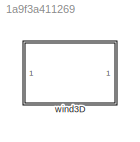
MODEL slx_1a9f3a411269
KIND library
CONFIG AbsTol = auto
CONFIG EnableMultiTasking = off
CONFIG FixedStep = auto
CONFIG MaxStep = auto
CONFIG MinStep = auto
CONFIG RelTol = 1e-3
CONFIG SampleTimeConstraint = Unconstrained
CONFIG Solver = VariableStepAuto
CONFIG SolverName = VariableStepAuto
CONFIG StartTime = 0.0
CONFIG StopTime = 10.0
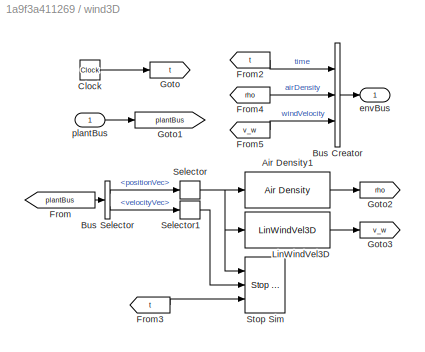
BLOCK [SubSystem] wind3D
  Ports = [1, 1]
  RequestExecContextInheritance = off
  VariantControl = strcmpi(PLANT,'wind3D')
BLOCK [Reference] wind3D/Air Density1  REF=AirDensity_ul/Air Density
  Ports = [1, 1]
  SourceBlock = AirDensity_ul/Air Density
BLOCK [BusCreator] wind3D/Bus Creator
  DisplayOption = bar
  InheritFromInputs = on
  Inputs = 3
  Ports = [3, 1]
BLOCK [BusSelector] wind3D/Bus Selector
  OutputSignals = positionVec,velocityVec
  Ports = [1, 2]
BLOCK [Clock] wind3D/Clock
BLOCK [From] wind3D/From
  GotoTag = plantBus
BLOCK [From] wind3D/From2
  GotoTag = t
BLOCK [From] wind3D/From3
  GotoTag = t
BLOCK [From] wind3D/From4
  GotoTag = rho
BLOCK [From] wind3D/From5
  GotoTag = v_w
BLOCK [Goto] wind3D/Goto
  GotoTag = t
BLOCK [Goto] wind3D/Goto1
  GotoTag = plantBus
BLOCK [Goto] wind3D/Goto2
  GotoTag = rho
BLOCK [Goto] wind3D/Goto3
  GotoTag = v_w
BLOCK [Reference] wind3D/LinWindVel3D  REF=LinWindVel3D_ul/LinWindVel3D
  Ports = [1, 1]
  SourceBlock = LinWindVel3D_ul/LinWindVel3D
BLOCK [Selector] wind3D/Selector
  IndexOptions = Index vector (dialog)
  Indices = 3
  InputPortWidth = 3
  OutputSizes = 1
  Ports = [1, 1]
BLOCK [Selector] wind3D/Selector1
  IndexOptions = Index vector (dialog)
  Indices = 3
  InputPortWidth = 3
  OutputSizes = 1
  Ports = [1, 1]
BLOCK [Reference] wind3D/Stop Sim  REF=stopSim_ul/Stop Sim
  Ports = [3]
  SourceBlock = stopSim_ul/Stop Sim
BLOCK [Outport] wind3D/envBus
  VectorParamsAs1DForOutWhenUnconnected = off
BLOCK [Inport] wind3D/plantBus
LINE wind3D/Air Density1:1 -> wind3D/Goto2:1
LINE wind3D/Bus Creator:1 -> wind3D/envBus:1
LINE wind3D/Bus Selector:1 -> wind3D/Selector:1
LINE wind3D/Bus Selector:2 -> wind3D/Selector1:1
LINE wind3D/Clock:1 -> wind3D/Goto:1
LINE wind3D/From2:1 -> wind3D/Bus Creator:1
LINE wind3D/From3:1 -> wind3D/Stop Sim:3
LINE wind3D/From4:1 -> wind3D/Bus Creator:2
LINE wind3D/From5:1 -> wind3D/Bus Creator:3
LINE wind3D/From:1 -> wind3D/Bus Selector:1
LINE wind3D/LinWindVel3D:1 -> wind3D/Goto3:1
LINE wind3D/Selector1:1 -> wind3D/Stop Sim:2
NET wind3D/Selector:1 -> wind3D/Air Density1:1, wind3D/LinWindVel3D:1, wind3D/Stop Sim:1
LINE wind3D/plantBus:1 -> wind3D/Goto1:1
note: NET lines group one-source signal fan-out (src -> all destinations, sorted); 1:1 wires keep LINE
